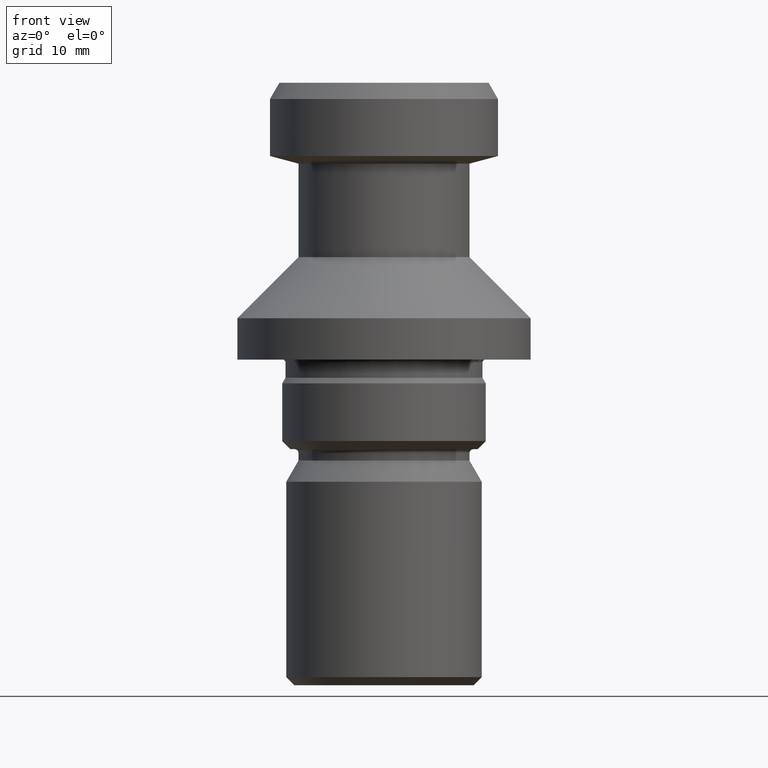
[diagram: clean part render]
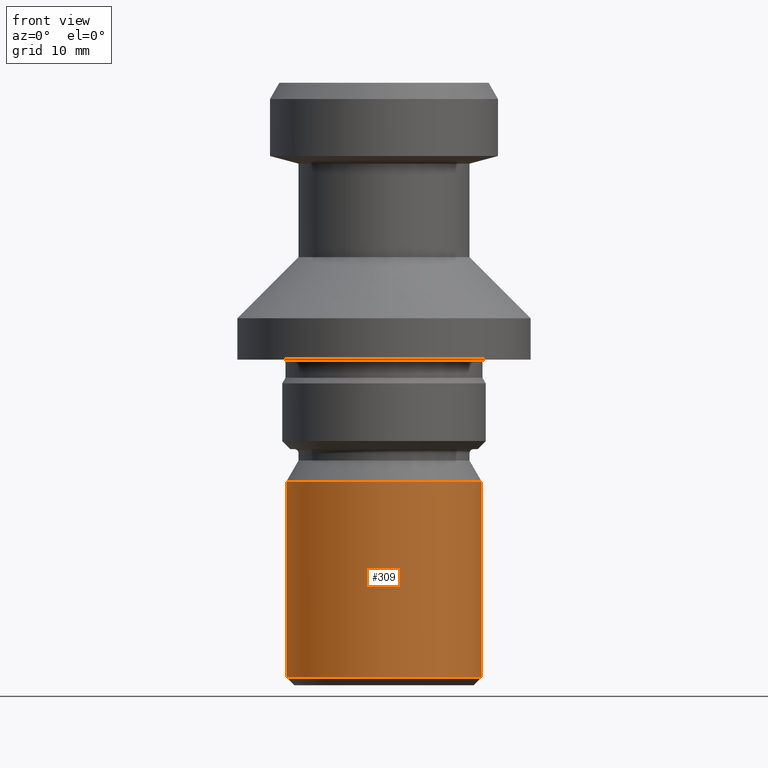
[diagram: same view with one face highlighted and labeled with its STEP entity id]
A machine part, front view. The second image highlights one B-rep face of the part: STEP entity #309.
In plain terms, the highlighted cylindrical surface (partial cylindrical patch) has radius 12 mm, axis along (-0, -0, 1).
Its self-contained STEP definition (entity closure, byte-faithful):
#3 = EDGE_CURVE ( 'NONE', #123, #745, #846, .T. ) ;
#14 = AXIS2_PLACEMENT_3D ( 'NONE', #903, #915, #891 ) ;
#20 = DIRECTION ( 'NONE',  ( -0.0000000000000000000, -0.0000000000000000000, 1.000000000000000000 ) ) ;
#61 = DIRECTION ( 'NONE',  ( -0.0000000000000000000, -0.0000000000000000000, 1.000000000000000000 ) ) ;
#66 = CIRCLE ( 'NONE', #750, 12.00000000000000000 ) ;
#67 = CARTESIAN_POINT ( 'NONE',  ( 12.00000000000000000, 0.0000000000000000000, -49.00000000000000700 ) ) ;
#110 = AXIS2_PLACEMENT_3D ( 'NONE', #483, #20, #863 ) ;
#122 = LINE ( 'NONE', #129, #959 ) ;
#123 = VERTEX_POINT ( 'NONE', #1022 ) ;
#129 = CARTESIAN_POINT ( 'NONE',  ( -12.00000000000000000, 1.469576158976823900E-015, 0.0000000000000000000 ) ) ;
#142 = DIRECTION ( 'NONE',  ( -0.0000000000000000000, -0.0000000000000000000, 1.000000000000000000 ) ) ;
#159 = ORIENTED_EDGE ( 'NONE', *, *, #244, .T. ) ;
#203 = FACE_OUTER_BOUND ( 'NONE', #492, .T. ) ;
#216 = VERTEX_POINT ( 'NONE', #416 ) ;
#221 = DIRECTION ( 'NONE',  ( 1.000000000000000000, 0.0000000000000000000, 0.0000000000000000000 ) ) ;
#232 = CYLINDRICAL_SURFACE ( 'NONE', #110, 12.00000000000000000 ) ;
#244 = EDGE_CURVE ( 'NONE', #684, #216, #66, .T. ) ;
#308 = CARTESIAN_POINT ( 'NONE',  ( -12.00000000000000000, 1.469576158976823900E-015, -73.00000000000001400 ) ) ;
#309 = ADVANCED_FACE ( 'NONE', ( #203 ), #232, .T. ) ;
#343 = CARTESIAN_POINT ( 'NONE',  ( 12.00000000000000000, 0.0000000000000000000, 0.0000000000000000000 ) ) ;
#416 = CARTESIAN_POINT ( 'NONE',  ( 12.00000000000000000, 0.0000000000000000000, -73.00000000000001400 ) ) ;
#459 = EDGE_CURVE ( 'NONE', #684, #123, #122, .T. ) ;
#483 = CARTESIAN_POINT ( 'NONE',  ( 0.0000000000000000000, 0.0000000000000000000, 0.0000000000000000000 ) ) ;
#492 = EDGE_LOOP ( 'NONE', ( #681, #159, #832, #807 ) ) ;
#566 = EDGE_CURVE ( 'NONE', #216, #745, #845, .T. ) ;
#586 = CARTESIAN_POINT ( 'NONE',  ( 0.0000000000000000000, 0.0000000000000000000, -73.00000000000001400 ) ) ;
#661 = VECTOR ( 'NONE', #939, 1000.000000000000000 ) ;
#681 = ORIENTED_EDGE ( 'NONE', *, *, #459, .F. ) ;
#684 = VERTEX_POINT ( 'NONE', #308 ) ;
#745 = VERTEX_POINT ( 'NONE', #67 ) ;
#750 = AXIS2_PLACEMENT_3D ( 'NONE', #586, #61, #221 ) ;
#807 = ORIENTED_EDGE ( 'NONE', *, *, #3, .F. ) ;
#832 = ORIENTED_EDGE ( 'NONE', *, *, #566, .T. ) ;
#845 = LINE ( 'NONE', #343, #661 ) ;
#846 = CIRCLE ( 'NONE', #14, 12.00000000000000000 ) ;
#863 = DIRECTION ( 'NONE',  ( 1.000000000000000000, 0.0000000000000000000, 0.0000000000000000000 ) ) ;
#891 = DIRECTION ( 'NONE',  ( 1.000000000000000000, 0.0000000000000000000, 0.0000000000000000000 ) ) ;
#903 = CARTESIAN_POINT ( 'NONE',  ( 0.0000000000000000000, 0.0000000000000000000, -49.00000000000000700 ) ) ;
#915 = DIRECTION ( 'NONE',  ( -0.0000000000000000000, -0.0000000000000000000, 1.000000000000000000 ) ) ;
#939 = DIRECTION ( 'NONE',  ( -0.0000000000000000000, -0.0000000000000000000, 1.000000000000000000 ) ) ;
#959 = VECTOR ( 'NONE', #142, 1000.000000000000000 ) ;
#1022 = CARTESIAN_POINT ( 'NONE',  ( -12.00000000000000000, 1.469576158976823900E-015, -49.00000000000000700 ) ) ;